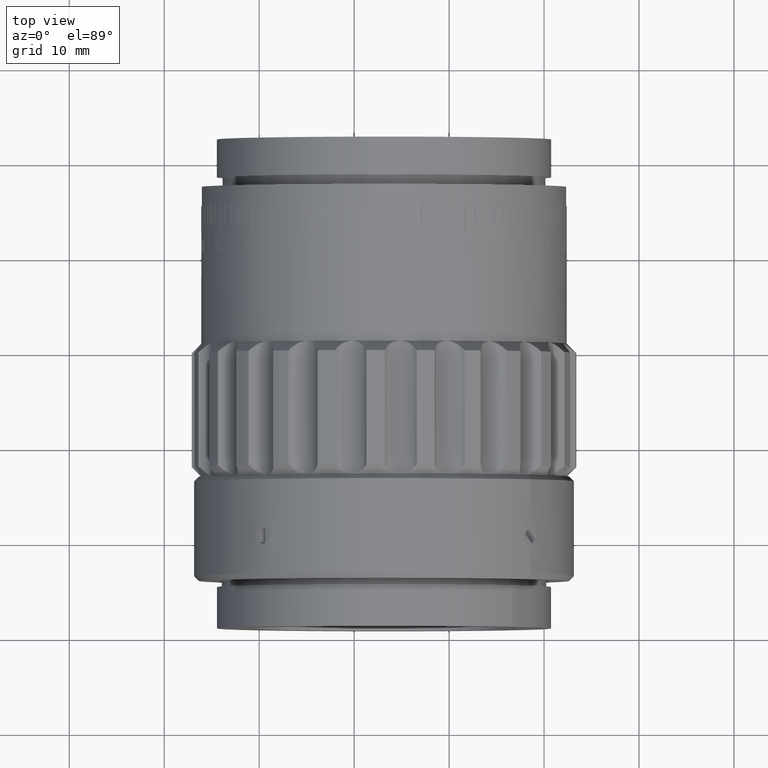
[diagram: clean part render]
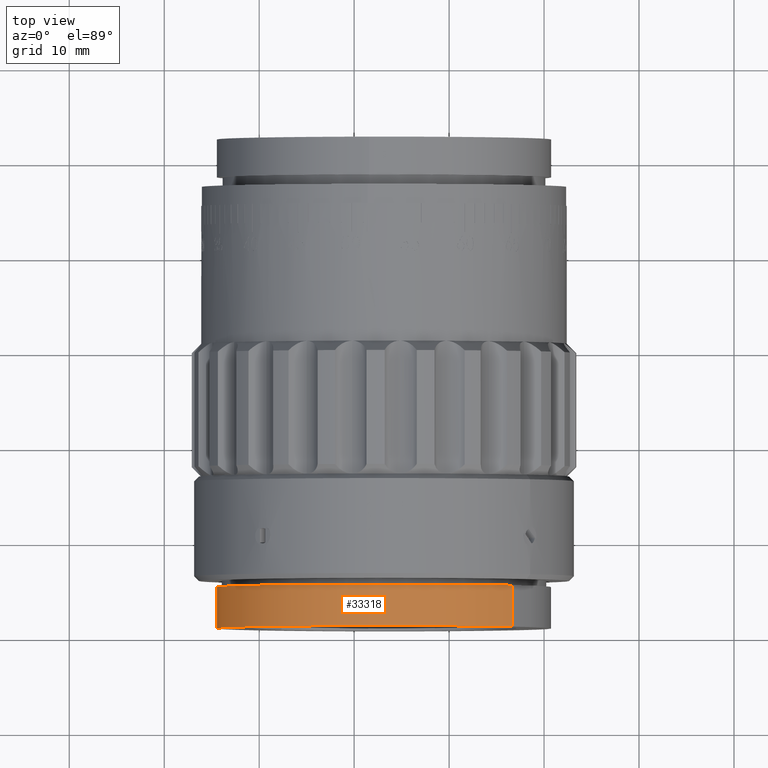
[diagram: same view with one face highlighted and labeled with its STEP entity id]
A machine part, top view. The second image highlights one B-rep face of the part: STEP entity #33318.
In plain terms, the highlighted cylindrical surface (partial cylindrical patch) has radius 17.6 mm, axis along (0, 1, 0).
Its self-contained STEP definition (entity closure, byte-faithful):
#691 = DIRECTION ( 'NONE',  ( -0.0000000000000000000, 1.000000000000000000, -0.0000000000000000000 ) ) ;
#4381 = DIRECTION ( 'NONE',  ( -0.0000000000000000000, 1.000000000000000000, -0.0000000000000000000 ) ) ;
#5559 = VECTOR ( 'NONE', #691, 1000.000000000000000 ) ;
#6945 = EDGE_CURVE ( 'NONE', #25935, #51218, #67545, .T. ) ;
#7052 = AXIS2_PLACEMENT_3D ( 'NONE', #19584, #78137, #96429 ) ;
#13930 = DIRECTION ( 'NONE',  ( -0.0000000000000000000, 1.000000000000000000, -0.0000000000000000000 ) ) ;
#14553 = FACE_OUTER_BOUND ( 'NONE', #56255, .T. ) ;
#19584 = CARTESIAN_POINT ( 'NONE',  ( 0.0000000000000000000, 35.23590944691601100, 0.0000000000000000000 ) ) ;
#23033 = CARTESIAN_POINT ( 'NONE',  ( 2.155378366499342800E-015, 35.23590944691601100, -17.60000000000000900 ) ) ;
#25935 = VERTEX_POINT ( 'NONE', #28997 ) ;
#27599 = CARTESIAN_POINT ( 'NONE',  ( 0.0000000000000000000, 35.23590944691601100, 17.60000000000000900 ) ) ;
#28997 = CARTESIAN_POINT ( 'NONE',  ( 0.0000000000000000000, -14.79999999999999400, 17.60000000000000900 ) ) ;
#29508 = CIRCLE ( 'NONE', #60453, 17.60000000000000900 ) ;
#33318 = ADVANCED_FACE ( 'NONE', ( #14553 ), #78691, .T. ) ;
#34776 = ORIENTED_EDGE ( 'NONE', *, *, #95631, .F. ) ;
#38550 = VERTEX_POINT ( 'NONE', #58005 ) ;
#46354 = VECTOR ( 'NONE', #95310, 1000.000000000000000 ) ;
#48819 = EDGE_CURVE ( 'NONE', #25935, #38550, #59470, .T. ) ;
#51218 = VERTEX_POINT ( 'NONE', #87852 ) ;
#56255 = EDGE_LOOP ( 'NONE', ( #90953, #104392, #34776, #73723 ) ) ;
#57079 = DIRECTION ( 'NONE',  ( 0.0000000000000000000, 0.0000000000000000000, 1.000000000000000000 ) ) ;
#58005 = CARTESIAN_POINT ( 'NONE',  ( 0.0000000000000000000, -10.43820173583021000, 17.60000000000000900 ) ) ;
#58320 = EDGE_CURVE ( 'NONE', #51218, #67166, #69713, .T. ) ;
#59470 = LINE ( 'NONE', #27599, #46354 ) ;
#60453 = AXIS2_PLACEMENT_3D ( 'NONE', #63989, #4381, #89282 ) ;
#63989 = CARTESIAN_POINT ( 'NONE',  ( 0.0000000000000000000, -10.43820173583021000, 0.0000000000000000000 ) ) ;
#67166 = VERTEX_POINT ( 'NONE', #67181 ) ;
#67181 = CARTESIAN_POINT ( 'NONE',  ( 2.155378366499342800E-015, -10.43820173583021000, -17.60000000000000900 ) ) ;
#67545 = CIRCLE ( 'NONE', #77740, 17.60000000000000900 ) ;
#69713 = LINE ( 'NONE', #23033, #5559 ) ;
#73723 = ORIENTED_EDGE ( 'NONE', *, *, #48819, .F. ) ;
#77740 = AXIS2_PLACEMENT_3D ( 'NONE', #106125, #13930, #57079 ) ;
#78137 = DIRECTION ( 'NONE',  ( -0.0000000000000000000, 1.000000000000000000, -0.0000000000000000000 ) ) ;
#78691 = CYLINDRICAL_SURFACE ( 'NONE', #7052, 17.60000000000000900 ) ;
#87852 = CARTESIAN_POINT ( 'NONE',  ( 2.155378366499342800E-015, -14.79999999999999400, -17.60000000000000900 ) ) ;
#89282 = DIRECTION ( 'NONE',  ( 0.0000000000000000000, 0.0000000000000000000, 1.000000000000000000 ) ) ;
#90953 = ORIENTED_EDGE ( 'NONE', *, *, #6945, .T. ) ;
#95310 = DIRECTION ( 'NONE',  ( -0.0000000000000000000, 1.000000000000000000, -0.0000000000000000000 ) ) ;
#95631 = EDGE_CURVE ( 'NONE', #38550, #67166, #29508, .T. ) ;
#96429 = DIRECTION ( 'NONE',  ( 0.0000000000000000000, 0.0000000000000000000, 1.000000000000000000 ) ) ;
#104392 = ORIENTED_EDGE ( 'NONE', *, *, #58320, .T. ) ;
#106125 = CARTESIAN_POINT ( 'NONE',  ( 0.0000000000000000000, -14.79999999999999400, 0.0000000000000000000 ) ) ;